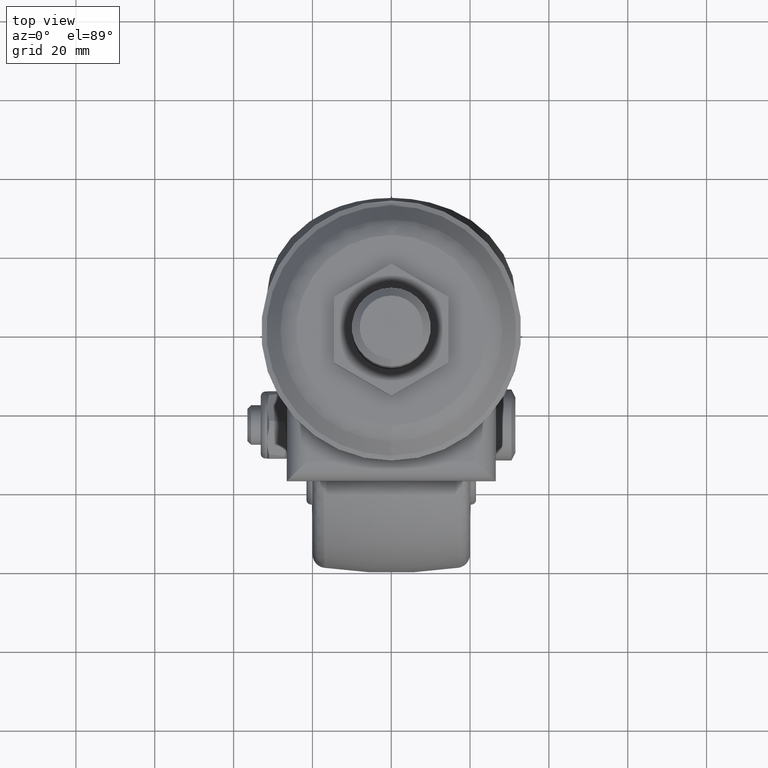
[diagram: clean part render]
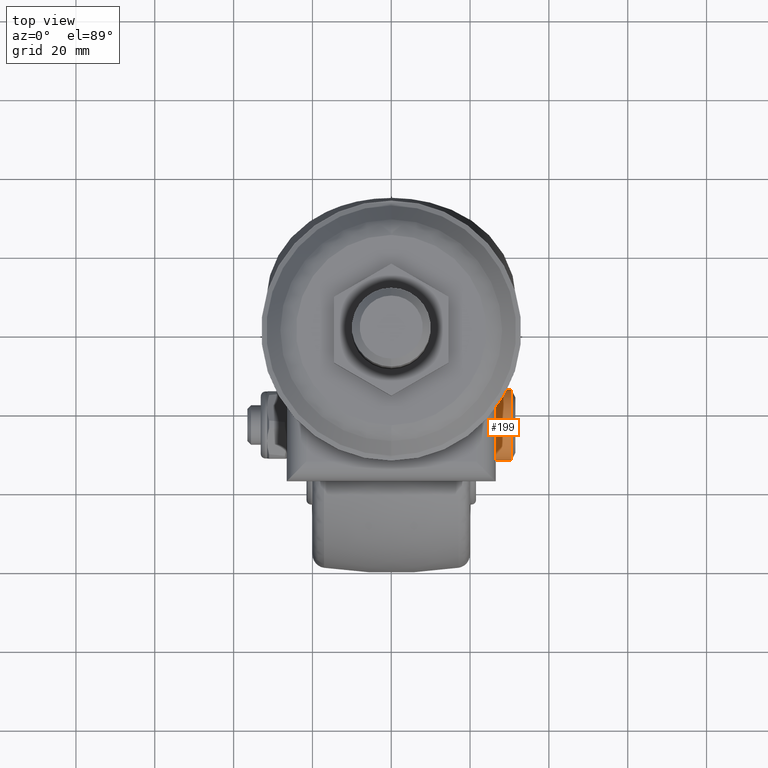
[diagram: same view with one face highlighted and labeled with its STEP entity id]
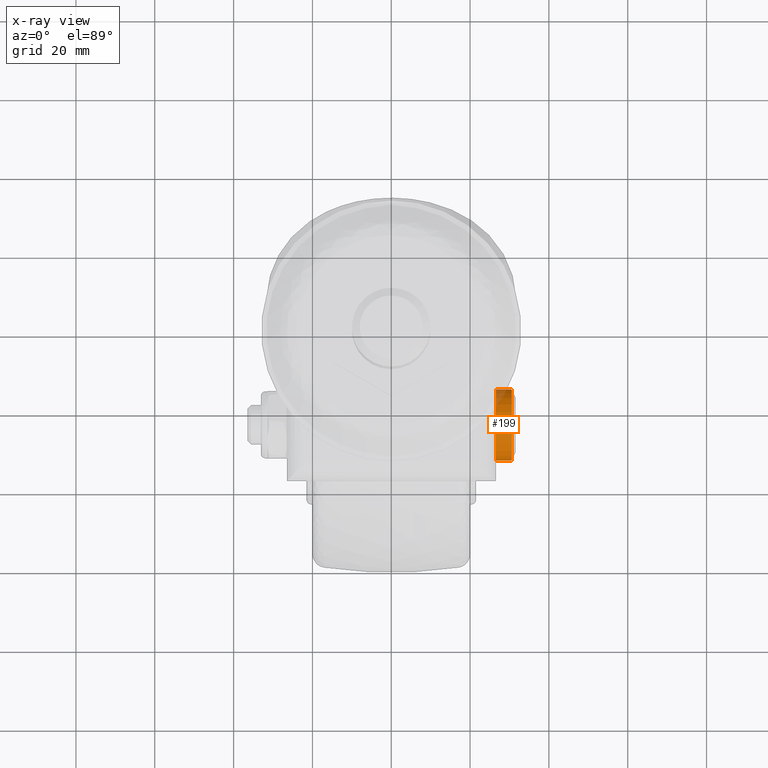
[diagram: x-ray of the same camera — body ghosted, the highlighted face saturated]
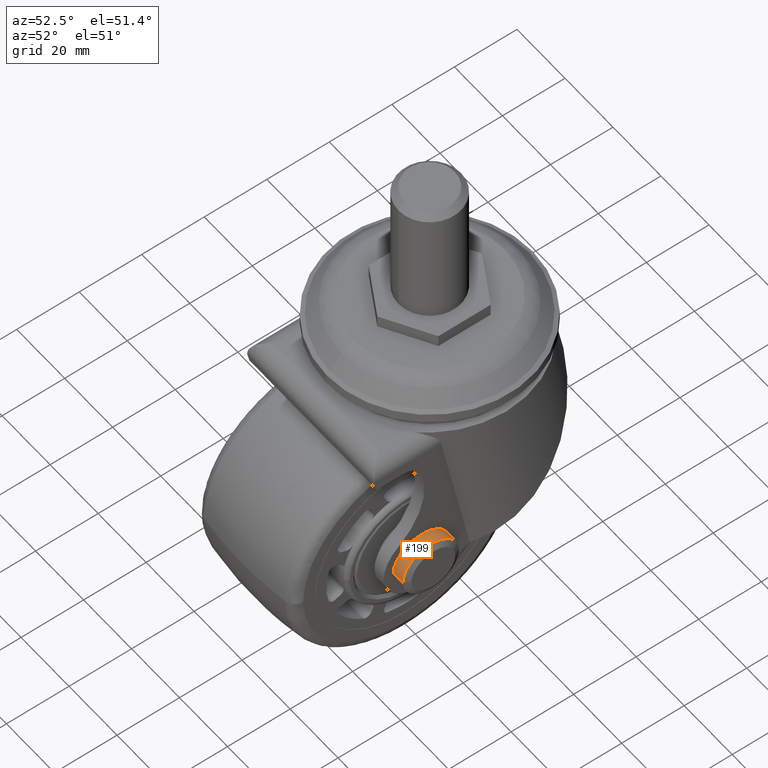
[diagram: same view with one face highlighted and labeled with its STEP entity id]
A machine part, top view. The second image highlights one B-rep face of the part: STEP entity #199.
The next image is the same camera in x-ray: the body ghosted, the highlighted face saturated — about 9% of this face is hidden behind the body in this view.
A second angle (auxiliary view) of the same face is appended — the face is thin or edge-on in the first view.
In plain terms, the highlighted cylindrical surface (edge-blend (fillet) strip) has radius 9 mm, axis along (-1, 0, -0).
Its self-contained STEP definition (entity closure, byte-faithful):
#199=ADVANCED_FACE('',(#1202),#1201,.T.);
#1201=CYLINDRICAL_SURFACE('',#3103,9.00000000000E+00);
#1202=FACE_OUTER_BOUND('',#3104,.T.);
#3100=CARTESIAN_POINT('',(3.15000000000E+01,-6.25000000000E+01,2.30000000000E+01));
#3101=DIRECTION('',(-1.00000000000E+00,-0.00000000000E+00,-0.00000000000E+00));
#3102=DIRECTION('',(0.00000000000E+00,0.00000000000E+00,1.00000000000E+00));
#3103=AXIS2_PLACEMENT_3D('',#3100,#3101,#3102);
#3104=EDGE_LOOP('',(#4584,#4585,#4586,#4587));
#4584=ORIENTED_EDGE('',*,*,#5285,.T.);
#4585=ORIENTED_EDGE('',*,*,#5449,.F.);
#4586=ORIENTED_EDGE('',*,*,#5450,.F.);
#4587=ORIENTED_EDGE('',*,*,#5451,.T.);
#5285=EDGE_CURVE('',#6107,#6108,#6109,.T.);
#5449=EDGE_CURVE('',#7183,#6108,#7184,.T.);
#5450=EDGE_CURVE('',#7190,#7183,#7191,.T.);
#5451=EDGE_CURVE('',#7190,#6107,#7197,.T.);
#6107=VERTEX_POINT('',#9768);
#6108=VERTEX_POINT('',#9769);
#6109=CIRCLE('',#9773,9.00000000000E+00);
#7183=VERTEX_POINT('',#10493);
#7184=(BOUNDED_CURVE() B_SPLINE_CURVE(1,(#10494,#10495),.UNSPECIFIED.,.F.,.F.) B_SPLINE_CURVE_WITH_KNOTS((2,2),(8.33333358172E-02,9.16666671238E-01),.UNSPECIFIED.) CURVE() GEOMETRIC_REPRESENTATION_ITEM() RATIONAL_B_SPLINE_CURVE((1.00000000000E+00,1.00000000000E+00)) REPRESENTATION_ITEM('') );
#7190=VERTEX_POINT('',#10496);
#7191=CIRCLE('',#10500,9.00000000000E+00);
#7197=(BOUNDED_CURVE() B_SPLINE_CURVE(1,(#10501,#10502),.UNSPECIFIED.,.F.,.F.) B_SPLINE_CURVE_WITH_KNOTS((2,2),(8.33333333333E-02,9.16666666667E-01),.UNSPECIFIED.) CURVE() GEOMETRIC_REPRESENTATION_ITEM() RATIONAL_B_SPLINE_CURVE((7.50000000000E-01,7.50000000000E-01)) REPRESENTATION_ITEM('') );
#9768=CARTESIAN_POINT('',(2.65000000000E+01,-6.25000000000E+01,1.40000000000E+01));
#9769=CARTESIAN_POINT('',(2.65000000000E+01,-6.25000000000E+01,3.20000000000E+01));
#9770=CARTESIAN_POINT('',(2.65000000000E+01,-6.25000000000E+01,2.30000000000E+01));
#9771=DIRECTION('',(1.00000000000E+00,0.00000000000E+00,-0.00000000000E+00));
#9772=DIRECTION('',(0.00000000000E+00,-1.22460635382E-16,1.00000000000E+00));
#9773=AXIS2_PLACEMENT_3D('',#9770,#9771,#9772);
#10493=CARTESIAN_POINT('',(3.05000000000E+01,-6.25000000000E+01,3.20000000000E+01));
#10494=CARTESIAN_POINT('',(3.04999999881E+01,-6.25000000000E+01,3.20000000000E+01));
#10495=CARTESIAN_POINT('',(2.64999999781E+01,-6.25000000000E+01,3.20000000000E+01));
#10496=CARTESIAN_POINT('',(3.05000000000E+01,-6.25000000000E+01,1.40000000000E+01));
#10497=CARTESIAN_POINT('',(3.05000000000E+01,-6.25000000000E+01,2.30000000000E+01));
#10498=DIRECTION('',(1.00000000000E+00,0.00000000000E+00,0.00000000000E+00));
#10499=DIRECTION('',(0.00000000000E+00,-1.22460635382E-16,-1.00000000000E+00));
#10500=AXIS2_PLACEMENT_3D('',#10497,#10498,#10499);
#10501=CARTESIAN_POINT('',(3.05000000000E+01,-6.25000000000E+01,1.40000000000E+01));
#10502=CARTESIAN_POINT('',(2.65000000000E+01,-6.25000000000E+01,1.40000000000E+01));